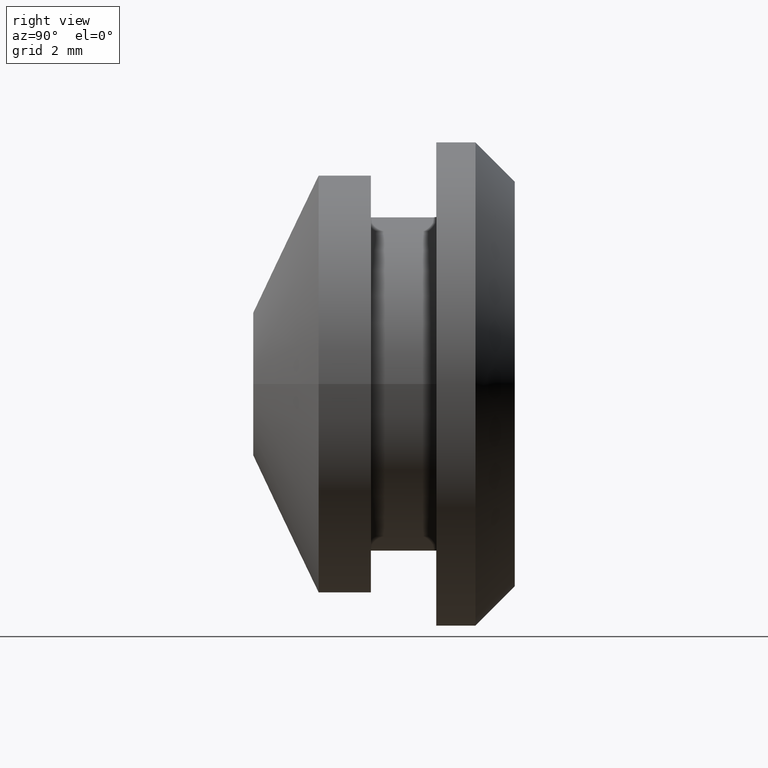
[diagram: clean part render]
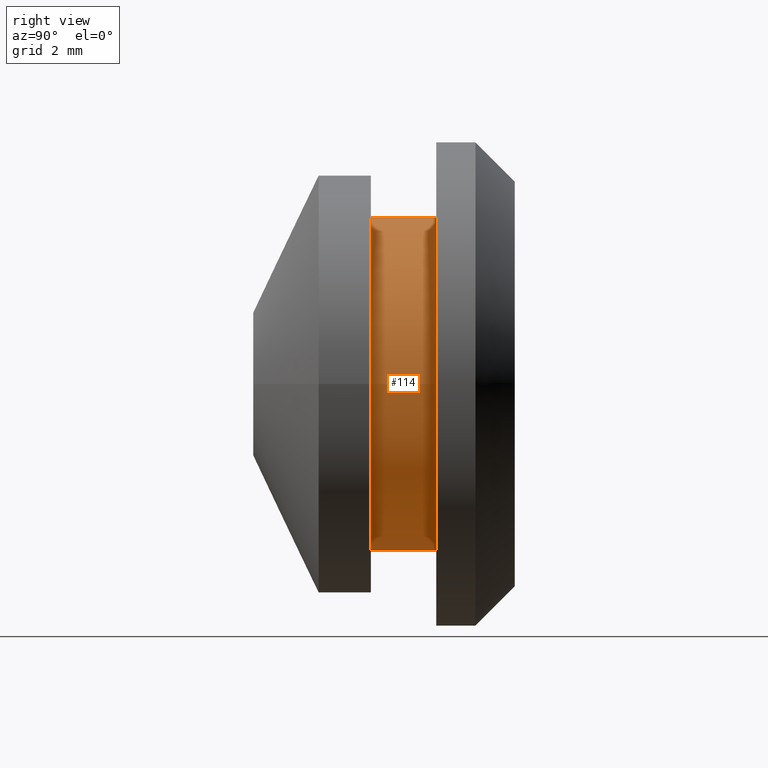
[diagram: same view with one face highlighted and labeled with its STEP entity id]
A machine part, right view. The second image highlights one B-rep face of the part: STEP entity #114.
In plain terms, the highlighted cylindrical surface (bore or boss wall) has radius 6.4 mm, axis along (0, -1, 0).
Its self-contained STEP definition (entity closure, byte-faithful):
#22=CYLINDRICAL_SURFACE('',#134,6.4);
#29=FACE_BOUND('',#56,.T.);
#39=FACE_OUTER_BOUND('',#55,.T.);
#55=EDGE_LOOP('',(#100));
#56=EDGE_LOOP('',(#101));
#66=CIRCLE('',#132,6.4);
#67=CIRCLE('',#135,6.4);
#75=VERTEX_POINT('',#199);
#76=VERTEX_POINT('',#203);
#84=EDGE_CURVE('',#75,#75,#66,.T.);
#85=EDGE_CURVE('',#76,#76,#67,.T.);
#100=ORIENTED_EDGE('',*,*,#84,.F.);
#101=ORIENTED_EDGE('',*,*,#85,.F.);
#114=ADVANCED_FACE('',(#39,#29),#22,.T.);
#132=AXIS2_PLACEMENT_3D('',#200,#167,#168);
#134=AXIS2_PLACEMENT_3D('',#202,#171,#172);
#135=AXIS2_PLACEMENT_3D('',#204,#173,#174);
#167=DIRECTION('center_axis',(0.,-1.,0.));
#168=DIRECTION('ref_axis',(-1.,0.,0.));
#171=DIRECTION('center_axis',(0.,-1.,0.));
#172=DIRECTION('ref_axis',(-1.,0.,0.));
#173=DIRECTION('center_axis',(0.,1.,0.));
#174=DIRECTION('ref_axis',(-1.,0.,0.));
#199=CARTESIAN_POINT('',(6.4,-2.5,7.83773951454306E-16));
#200=CARTESIAN_POINT('Origin',(0.,-2.5,0.));
#202=CARTESIAN_POINT('Origin',(0.,0.,0.));
#203=CARTESIAN_POINT('',(6.4,0.,7.83773951454306E-16));
#204=CARTESIAN_POINT('Origin',(0.,0.,0.));